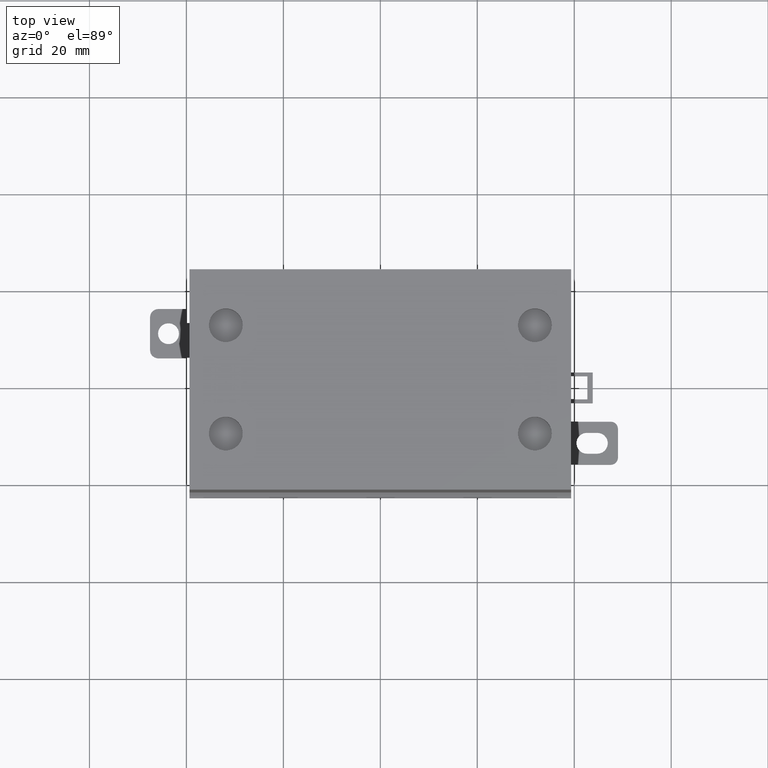
[diagram: clean part render]
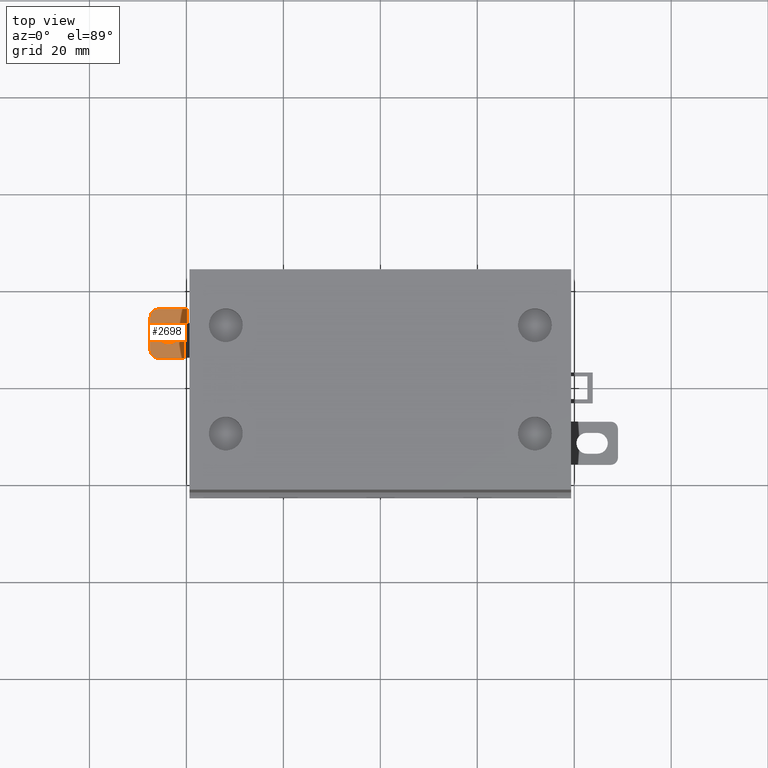
[diagram: same view with one face highlighted and labeled with its STEP entity id]
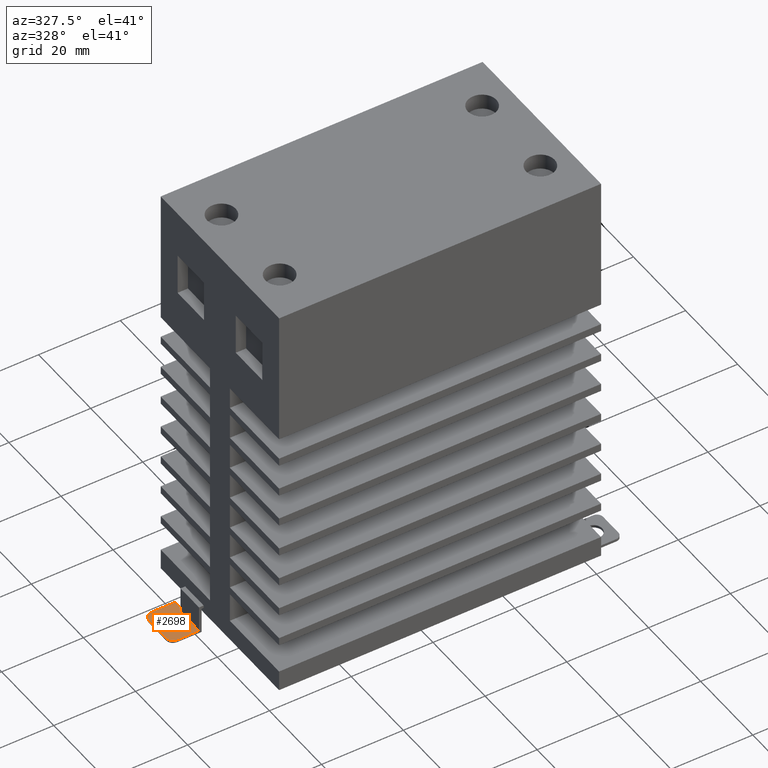
[diagram: same view with one face highlighted and labeled with its STEP entity id]
A machine part, top view. The second image highlights one B-rep face of the part: STEP entity #2698.
A second angle (auxiliary view) of the same face is appended — the face is thin or edge-on in the first view.
In plain terms, the highlighted planar face has unit normal (0, 0, 1).
Its self-contained STEP definition (entity closure, byte-faithful):
#154 = EDGE_CURVE ( 'EDGE521', #593, #4987, #6468, .T. ) ;
#357 = CARTESIAN_POINT ( 'NONE',  ( -1.803333333333334800, 0.6449999999999999100, 0.02500000000000000100 ) ) ;
#561 = CARTESIAN_POINT ( 'NONE',  ( -1.803333333333334800, 0.2450000000000003800, 0.02500000000000000100 ) ) ;
#566 = EDGE_CURVE ( 'EDGE535', #5501, #647, #5131, .T. ) ;
#593 = VERTEX_POINT ( 'NONE', #3468 ) ;
#647 = VERTEX_POINT ( 'NONE', #3088 ) ;
#875 = CARTESIAN_POINT ( 'NONE',  ( -1.570000000000000300, 0.2450000000000000200, 0.02500000000000000100 ) ) ;
#1022 = ORIENTED_EDGE ( 'NONE', *, *, #5646, .T. ) ;
#1418 = LINE ( 'NONE', #7568, #7528 ) ;
#1512 = DIRECTION ( 'NONE',  ( 0.0000000000000000000, 0.0000000000000000000, -1.000000000000000000 ) ) ;
#1655 = EDGE_CURVE ( 'EDGE532', #647, #2125, #2612, .T. ) ;
#1678 = AXIS2_PLACEMENT_3D ( 'NONE', #5538, #1512, #6197 ) ;
#1698 = CARTESIAN_POINT ( 'NONE',  ( -1.595000000000000000, 0.2450000000000000200, 0.02500000000000000100 ) ) ;
#1934 = EDGE_CURVE ( 'EDGE538', #8537, #5501, #2621, .T. ) ;
#2101 = CARTESIAN_POINT ( 'NONE',  ( -1.570000000000000300, 0.5250000000000000200, 0.02500000000000000100 ) ) ;
#2125 = VERTEX_POINT ( 'NONE', #357 ) ;
#2128 = CIRCLE ( 'NONE', #8477, 0.08500000000000004800 ) ;
#2222 = CARTESIAN_POINT ( 'NONE',  ( -1.720000000000000200, 0.4450000000000000100, 0.02500000000000000100 ) ) ;
#2436 = ORIENTED_EDGE ( 'NONE', *, *, #7770, .F. ) ;
#2606 = ORIENTED_EDGE ( 'NONE', *, *, #4461, .F. ) ;
#2612 = CIRCLE ( 'NONE', #6205, 0.06666666666666652700 ) ;
#2621 = CIRCLE ( 'NONE', #4240, 0.06666666666666659600 ) ;
#2698 = ADVANCED_FACE ( 'FACE203', ( #8439, #3181 ), #4429, .T. ) ;
#2883 = DIRECTION ( 'NONE',  ( -1.000000000000000000, 0.0000000000000000000, 0.0000000000000000000 ) ) ;
#2906 = VECTOR ( 'NONE', #8120, 39.37007874015748100 ) ;
#2914 = DIRECTION ( 'NONE',  ( 1.110223024625160000E-016, 1.000000000000000000, 0.0000000000000000000 ) ) ;
#3088 = CARTESIAN_POINT ( 'NONE',  ( -1.870000000000000100, 0.5783333333333347000, 0.02500000000000000100 ) ) ;
#3091 = CARTESIAN_POINT ( 'NONE',  ( -1.712997019451381900, 0.4450000000000000100, 0.02500000000000000100 ) ) ;
#3111 = LINE ( 'NONE', #875, #2906 ) ;
#3181 = FACE_BOUND ( 'NONE', #4932, .T. ) ;
#3199 = EDGE_CURVE ( 'EDGE544', #5648, #5562, #2128, .T. ) ;
#3251 = DIRECTION ( 'NONE',  ( -1.000000000000000000, 2.299747693866399800E-016, 0.0000000000000000000 ) ) ;
#3392 = CARTESIAN_POINT ( 'NONE',  ( -1.870000000000000100, 0.3116666666666669800, 0.02500000000000000100 ) ) ;
#3394 = ORIENTED_EDGE ( 'NONE', *, *, #154, .T. ) ;
#3468 = CARTESIAN_POINT ( 'NONE',  ( -1.595000000000000000, 0.5250000000000000200, 0.02500000000000000100 ) ) ;
#3527 = EDGE_LOOP ( 'NONE', ( #1022, #3394, #2606, #2436, #5161, #5325, #3798, #6572 ) ) ;
#3637 = CARTESIAN_POINT ( 'NONE',  ( -1.870000000000000100, 0.5783333333333347000, 0.02500000000000000100 ) ) ;
#3643 = DIRECTION ( 'NONE',  ( 1.110223024625160000E-016, 1.000000000000000000, 0.0000000000000000000 ) ) ;
#3752 = DIRECTION ( 'NONE',  ( 1.000000000000000000, 0.0000000000000000000, 0.0000000000000000000 ) ) ;
#3798 = ORIENTED_EDGE ( 'NONE', *, *, #1934, .F. ) ;
#3838 = VECTOR ( 'NONE', #3643, 39.37007874015748100 ) ;
#4240 = AXIS2_PLACEMENT_3D ( 'NONE', #4970, #4943, #4931 ) ;
#4429 = PLANE ( 'NONE',  #7090 ) ;
#4461 = EDGE_CURVE ( 'EDGE527', #8321, #4987, #3111, .T. ) ;
#4685 = VERTEX_POINT ( 'NONE', #1698 ) ;
#4860 = CARTESIAN_POINT ( 'NONE',  ( -1.635000000000000200, 0.4450000000000000100, 0.02500000000000000100 ) ) ;
#4931 = DIRECTION ( 'NONE',  ( -1.000000000000000000, -1.024442997624099800E-015, 0.0000000000000000000 ) ) ;
#4932 = EDGE_LOOP ( 'NONE', ( #7377, #5436 ) ) ;
#4943 = DIRECTION ( 'NONE',  ( 0.0000000000000000000, 0.0000000000000000000, -1.000000000000000000 ) ) ;
#4970 = CARTESIAN_POINT ( 'NONE',  ( -1.803333333333334800, 0.3116666666666669800, 0.02500000000000000100 ) ) ;
#4987 = VERTEX_POINT ( 'NONE', #2101 ) ;
#5131 = LINE ( 'NONE', #3637, #3838 ) ;
#5161 = ORIENTED_EDGE ( 'NONE', *, *, #1655, .F. ) ;
#5325 = ORIENTED_EDGE ( 'NONE', *, *, #566, .F. ) ;
#5436 = ORIENTED_EDGE ( 'NONE', *, *, #5554, .T. ) ;
#5501 = VERTEX_POINT ( 'NONE', #3392 ) ;
#5538 = CARTESIAN_POINT ( 'NONE',  ( -1.720000000000000200, 0.4450000000000000100, 0.02500000000000000100 ) ) ;
#5554 = EDGE_CURVE ( 'EDGE544', #5562, #5648, #6847, .T. ) ;
#5562 = VERTEX_POINT ( 'NONE', #4860 ) ;
#5646 = EDGE_CURVE ( 'EDGE523', #4685, #593, #1418, .T. ) ;
#5648 = VERTEX_POINT ( 'NONE', #8202 ) ;
#5699 = CARTESIAN_POINT ( 'NONE',  ( -1.570000000000000300, 0.6449999999999999100, 0.02500000000000000100 ) ) ;
#5903 = VECTOR ( 'NONE', #7288, 39.37007874015748100 ) ;
#6120 = LINE ( 'NONE', #7906, #5903 ) ;
#6197 = DIRECTION ( 'NONE',  ( -1.000000000000000000, 0.0000000000000000000, 0.0000000000000000000 ) ) ;
#6205 = AXIS2_PLACEMENT_3D ( 'NONE', #7993, #7933, #7901 ) ;
#6447 = VECTOR ( 'NONE', #6717, 39.37007874015748100 ) ;
#6468 = LINE ( 'NONE', #6728, #6447 ) ;
#6572 = ORIENTED_EDGE ( 'NONE', *, *, #7692, .F. ) ;
#6717 = DIRECTION ( 'NONE',  ( 1.000000000000000000, -1.110223024625160000E-016, 0.0000000000000000000 ) ) ;
#6728 = CARTESIAN_POINT ( 'NONE',  ( -1.647748509725693200, 0.5250000000000000200, 0.02500000000000000100 ) ) ;
#6847 = CIRCLE ( 'NONE', #1678, 0.08500000000000004800 ) ;
#6913 = DIRECTION ( 'NONE',  ( 0.0000000000000000000, 0.0000000000000000000, -1.000000000000000000 ) ) ;
#6934 = LINE ( 'NONE', #8489, #8014 ) ;
#7090 = AXIS2_PLACEMENT_3D ( 'NONE', #3091, #7724, #3752 ) ;
#7288 = DIRECTION ( 'NONE',  ( 1.000000000000000000, -1.110223024625160000E-016, 0.0000000000000000000 ) ) ;
#7377 = ORIENTED_EDGE ( 'NONE', *, *, #3199, .T. ) ;
#7528 = VECTOR ( 'NONE', #2914, 39.37007874015748100 ) ;
#7568 = CARTESIAN_POINT ( 'NONE',  ( -1.595000000000000000, 0.4150000000000000400, 0.02500000000000000100 ) ) ;
#7692 = EDGE_CURVE ( 'EDGE541', #4685, #8537, #6934, .T. ) ;
#7724 = DIRECTION ( 'NONE',  ( 0.0000000000000000000, 0.0000000000000000000, 1.000000000000000000 ) ) ;
#7770 = EDGE_CURVE ( 'EDGE529', #2125, #8321, #6120, .T. ) ;
#7901 = DIRECTION ( 'NONE',  ( 0.0000000000000000000, 1.000000000000000000, 0.0000000000000000000 ) ) ;
#7906 = CARTESIAN_POINT ( 'NONE',  ( -1.570000000000000300, 0.6449999999999999100, 0.02500000000000000100 ) ) ;
#7933 = DIRECTION ( 'NONE',  ( 0.0000000000000000000, 0.0000000000000000000, -1.000000000000000000 ) ) ;
#7993 = CARTESIAN_POINT ( 'NONE',  ( -1.803333333333334800, 0.5783333333333347000, 0.02500000000000000100 ) ) ;
#8014 = VECTOR ( 'NONE', #3251, 39.37007874015748100 ) ;
#8120 = DIRECTION ( 'NONE',  ( -3.191891195797330000E-016, -1.000000000000000000, 0.0000000000000000000 ) ) ;
#8202 = CARTESIAN_POINT ( 'NONE',  ( -1.805000000000000400, 0.4450000000000000100, 0.02500000000000000100 ) ) ;
#8321 = VERTEX_POINT ( 'NONE', #5699 ) ;
#8439 = FACE_OUTER_BOUND ( 'NONE', #3527, .T. ) ;
#8477 = AXIS2_PLACEMENT_3D ( 'NONE', #2222, #6913, #2883 ) ;
#8489 = CARTESIAN_POINT ( 'NONE',  ( -1.803333333333334800, 0.2450000000000000200, 0.02500000000000000100 ) ) ;
#8537 = VERTEX_POINT ( 'NONE', #561 ) ;